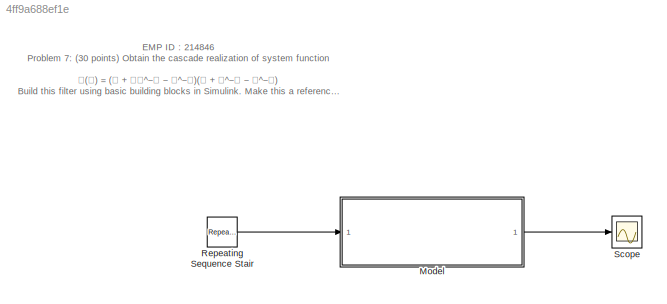
MODEL slx_4ff9a688ef1e
KIND model
CONFIG AbsTol = auto
CONFIG EnableMultiTasking = off
CONFIG FixedStep = auto
CONFIG MaxStep = auto
CONFIG MinStep = auto
CONFIG RelTol = 1e-3
CONFIG SampleTimeConstraint = Unconstrained
CONFIG Solver = VariableStepAuto
CONFIG SolverName = VariableStepAuto
CONFIG StartTime = 0.0
CONFIG StopTime = 10.0
BLOCK [ModelReference] Model
  ModelNameDialog = cascade_realization
  ModelReferenceVersion = 1.3
  Ports = [1, 1]
BLOCK [Reference] Repeating Sequence Stair  REF=simulink/Sources/Repeating
Sequence
Stair
  Ports = [0, 1]
  SourceBlock = simulink/Sources/Repeating\nSequence\nStair
  SourceProductBaseCode = SL
  SourceType = Repeating Sequence Stair
BLOCK [Scope] Scope
  Floating = off
  NumInputPorts = 1
  Ports = [1]
  ScopeSpecificationString = Simulink.scopes.TimeScopeBlockCfg('CurrentConfiguration', extmgr.ConfigurationSet(extmgr.Configuration('Core','General UI',true),extmgr.Configuration('Core','Source UI',true),extmgr.Configuration('Sources','WiredSimulink',true),extmgr.Configuration('Visuals','Time Domain',true,'SerializedDisplays',{struct('MinYLimReal','-6.875','MaxYLimReal','11.875','YLabelReal','','MinYLimMag','0.00000','MaxYLim...<+1374ch>
ANNOTATION (root): EMP ID : 214846 Problem 7: (30 points) Obtain the cascade realization of system function 𝐇(𝐳) = (𝟏 + 𝟐𝐳^−𝟏 − 𝐳^−𝟐)(𝟏 + 𝐳^−𝟏 − 𝐳^−𝟐) Build this filter using basic building blocks in Simulink. Make this a reference model.
LINE Model:1 -> Scope:1
LINE Repeating Sequence Stair:1 -> Model:1
